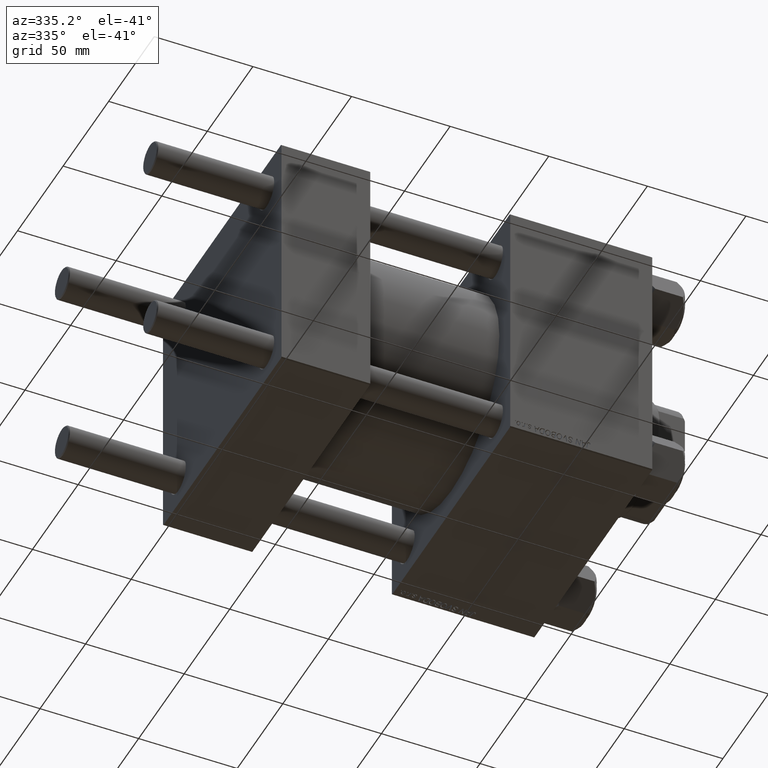
[diagram: clean part render]
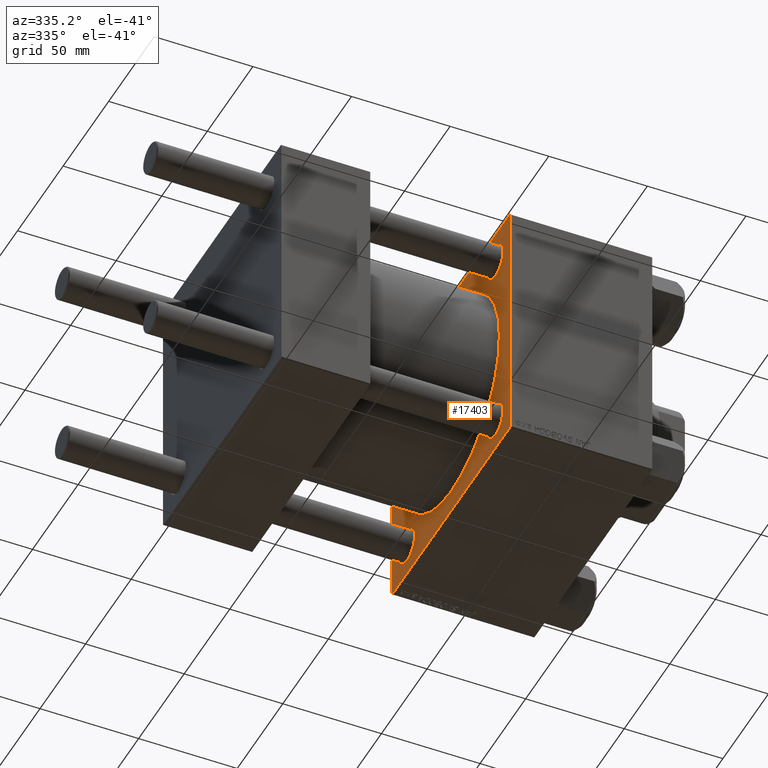
[diagram: same view with one face highlighted and labeled with its STEP entity id]
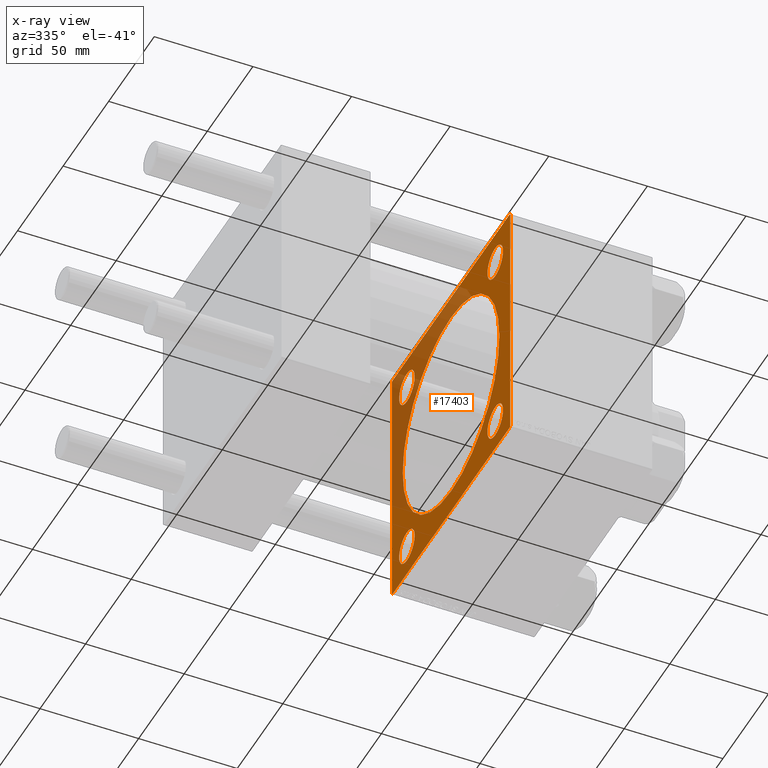
[diagram: x-ray of the same camera — body ghosted, the highlighted face saturated]
A machine part, auxiliary view. The second image highlights one B-rep face of the part: STEP entity #17403.
The next image is the same camera in x-ray: the body ghosted, the highlighted face saturated — about 31% of this face is hidden behind the body in this view.
In plain terms, the highlighted planar face has unit normal (-1, 0, 0).
Its self-contained STEP definition (entity closure, byte-faithful):
#423 = DIRECTION ( 'NONE',  ( 0.000000000000000000, 0.000000000000000000, 1.000000000000000000 ) ) ;
#435 = CARTESIAN_POINT ( 'NONE',  ( 115.9999999999999858, 64.50000000000002842, -64.99999999999998579 ) ) ;
#572 = DIRECTION ( 'NONE',  ( 0.000000000000000000, 0.000000000000000000, -1.000000000000000000 ) ) ;
#911 = DIRECTION ( 'NONE',  ( 1.000000000000000000, -0.000000000000000000, 0.000000000000000000 ) ) ;
#1003 = CARTESIAN_POINT ( 'NONE',  ( 115.9999999999999858, 64.75000000000181899, 64.74999999999822364 ) ) ;
#1353 = ORIENTED_EDGE ( 'NONE', *, *, #32723, .T. ) ;
#1377 = CARTESIAN_POINT ( 'NONE',  ( 115.9999999999999858, -48.44999999999999574, 56.94999999999998153 ) ) ;
#2782 = DIRECTION ( 'NONE',  ( 0.000000000000000000, 0.000000000000000000, -1.000000000000000000 ) ) ;
#2991 = CARTESIAN_POINT ( 'NONE',  ( 115.9999999999999858, 48.45000000000000995, -48.45000000000001705 ) ) ;
#3050 = CARTESIAN_POINT ( 'NONE',  ( 115.9999999999999858, -48.44999999999999574, -48.45000000000003126 ) ) ;
#3312 = CARTESIAN_POINT ( 'NONE',  ( 115.9999999999999858, -64.50000000000008527, 65.00000000000000000 ) ) ;
#3318 = CARTESIAN_POINT ( 'NONE',  ( 115.9999999999999858, -48.44999999999999574, 48.45000000000003126 ) ) ;
#3742 = FACE_BOUND ( 'NONE', #23202, .T. ) ;
#3964 = AXIS2_PLACEMENT_3D ( 'NONE', #43054, #15758, #12188 ) ;
#4161 = EDGE_CURVE ( 'NONE', #22669, #16779, #48635, .T. ) ;
#4215 = VECTOR ( 'NONE', #28365, 1000.000000000000000 ) ;
#4265 = CARTESIAN_POINT ( 'NONE',  ( 115.9999999999999858, 65.00000000000002842, -64.99999999999998579 ) ) ;
#5058 = VECTOR ( 'NONE', #41491, 1000.000000000000000 ) ;
#5149 = CARTESIAN_POINT ( 'NONE',  ( 115.9999999999999858, -64.50000000000002842, -65.00000000000001421 ) ) ;
#5670 = DIRECTION ( 'NONE',  ( -0.000000000000000000, -0.7071067811865671127, -0.7071067811865279218 ) ) ;
#5692 = CARTESIAN_POINT ( 'NONE',  ( 115.9999999999999858, -48.44999999999999574, 39.95000000000007390 ) ) ;
#5753 = CARTESIAN_POINT ( 'NONE',  ( 115.9999999999999858, -64.99999999999998579, 64.50000000000008527 ) ) ;
#5755 = VERTEX_POINT ( 'NONE', #5692 ) ;
#6107 = CARTESIAN_POINT ( 'NONE',  ( 115.9999999999999858, 0.000000000000000000, 0.000000000000000000 ) ) ;
#6985 = ORIENTED_EDGE ( 'NONE', *, *, #49990, .T. ) ;
#7256 = ORIENTED_EDGE ( 'NONE', *, *, #41363, .T. ) ;
#7318 = EDGE_LOOP ( 'NONE', ( #42192, #41130 ) ) ;
#7564 = FACE_BOUND ( 'NONE', #43947, .T. ) ;
#8051 = EDGE_CURVE ( 'NONE', #5755, #31914, #14155, .T. ) ;
#8074 = PLANE ( 'NONE',  #38797 ) ;
#8273 = ORIENTED_EDGE ( 'NONE', *, *, #38944, .T. ) ;
#8972 = CARTESIAN_POINT ( 'NONE',  ( 115.9999999999999858, -48.44999999999999574, -39.95000000000007390 ) ) ;
#9087 = DIRECTION ( 'NONE',  ( 1.000000000000000000, -0.000000000000000000, 0.000000000000000000 ) ) ;
#9145 = DIRECTION ( 'NONE',  ( 0.000000000000000000, 0.7071067811865279218, -0.7071067811865671127 ) ) ;
#9434 = CARTESIAN_POINT ( 'NONE',  ( 115.9999999999999858, -48.44999999999999574, 48.45000000000003126 ) ) ;
#9555 = CARTESIAN_POINT ( 'NONE',  ( 115.9999999999999858, -64.99999999999998579, -64.50000000000002842 ) ) ;
#10468 = AXIS2_PLACEMENT_3D ( 'NONE', #6107, #21656, #2782 ) ;
#10519 = ORIENTED_EDGE ( 'NONE', *, *, #16603, .T. ) ;
#10632 = DIRECTION ( 'NONE',  ( 0.000000000000000000, 0.000000000000000000, 1.000000000000000000 ) ) ;
#10823 = ORIENTED_EDGE ( 'NONE', *, *, #27561, .T. ) ;
#11128 = CARTESIAN_POINT ( 'NONE',  ( 115.9999999999999858, 0.000000000000000000, 0.000000000000000000 ) ) ;
#11917 = DIRECTION ( 'NONE',  ( 0.000000000000000000, -1.000000000000000000, -2.135044278125300850E-16 ) ) ;
#12023 = ORIENTED_EDGE ( 'NONE', *, *, #21187, .F. ) ;
#12072 = LINE ( 'NONE', #27627, #4215 ) ;
#12188 = DIRECTION ( 'NONE',  ( 0.000000000000000000, 0.000000000000000000, 1.000000000000000000 ) ) ;
#12751 = DIRECTION ( 'NONE',  ( 1.000000000000000000, -0.000000000000000000, 0.000000000000000000 ) ) ;
#13133 = VECTOR ( 'NONE', #5670, 1000.000000000000000 ) ;
#13581 = CARTESIAN_POINT ( 'NONE',  ( 115.9999999999999858, 48.45000000000000995, 39.95000000000005969 ) ) ;
#13660 = ORIENTED_EDGE ( 'NONE', *, *, #28082, .T. ) ;
#13704 = AXIS2_PLACEMENT_3D ( 'NONE', #2991, #45578, #10632 ) ;
#13765 = DIRECTION ( 'NONE',  ( 0.000000000000000000, 0.000000000000000000, 1.000000000000000000 ) ) ;
#14155 = CIRCLE ( 'NONE', #19017, 8.499999999999952038 ) ;
#14702 = LINE ( 'NONE', #40996, #17405 ) ;
#15181 = CARTESIAN_POINT ( 'NONE',  ( 115.9999999999999858, 65.00000000000002842, 65.00000000000001421 ) ) ;
#15351 = CIRCLE ( 'NONE', #3964, 8.499999999999952038 ) ;
#15758 = DIRECTION ( 'NONE',  ( 1.000000000000000000, -0.000000000000000000, 0.000000000000000000 ) ) ;
#16603 = EDGE_CURVE ( 'NONE', #17101, #28684, #26556, .T. ) ;
#16779 = VERTEX_POINT ( 'NONE', #9555 ) ;
#16950 = CARTESIAN_POINT ( 'NONE',  ( 115.9999999999999858, -48.44999999999999574, -56.94999999999998153 ) ) ;
#17101 = VERTEX_POINT ( 'NONE', #13581 ) ;
#17403 = ADVANCED_FACE ( 'NONE', ( #7564, #38169, #27456, #3742, #19291, #34868 ), #8074, .T. ) ;
#17405 = VECTOR ( 'NONE', #29512, 999.9999999999998863 ) ;
#18828 = CIRCLE ( 'NONE', #25317, 53.00000000000000711 ) ;
#18865 = DIRECTION ( 'NONE',  ( 0.000000000000000000, 0.000000000000000000, 1.000000000000000000 ) ) ;
#19001 = DIRECTION ( 'NONE',  ( 0.000000000000000000, 0.000000000000000000, 1.000000000000000000 ) ) ;
#19017 = AXIS2_PLACEMENT_3D ( 'NONE', #3318, #9087, #18865 ) ;
#19291 = FACE_BOUND ( 'NONE', #33982, .T. ) ;
#19369 = AXIS2_PLACEMENT_3D ( 'NONE', #3050, #38483, #38226 ) ;
#19803 = ORIENTED_EDGE ( 'NONE', *, *, #46148, .T. ) ;
#19929 = CIRCLE ( 'NONE', #41919, 8.499999999999952038 ) ;
#20229 = VERTEX_POINT ( 'NONE', #3312 ) ;
#20996 = VERTEX_POINT ( 'NONE', #21507 ) ;
#21187 = EDGE_CURVE ( 'NONE', #32810, #20229, #44606, .T. ) ;
#21294 = CARTESIAN_POINT ( 'NONE',  ( 115.9999999999999858, 48.45000000000000995, 56.94999999999996732 ) ) ;
#21507 = CARTESIAN_POINT ( 'NONE',  ( 115.9999999999999858, 6.490628035480973107E-15, -53.00000000000000711 ) ) ;
#21527 = ORIENTED_EDGE ( 'NONE', *, *, #37780, .T. ) ;
#21656 = DIRECTION ( 'NONE',  ( 1.000000000000000000, 0.000000000000000000, 0.000000000000000000 ) ) ;
#21971 = LINE ( 'NONE', #49017, #13133 ) ;
#22171 = EDGE_CURVE ( 'NONE', #49662, #27959, #23453, .T. ) ;
#22489 = EDGE_CURVE ( 'NONE', #27848, #32910, #47893, .T. ) ;
#22574 = VERTEX_POINT ( 'NONE', #435 ) ;
#22669 = VERTEX_POINT ( 'NONE', #5753 ) ;
#23202 = EDGE_LOOP ( 'NONE', ( #49781, #13660 ) ) ;
#23453 = CIRCLE ( 'NONE', #19369, 8.499999999999952038 ) ;
#24013 = CARTESIAN_POINT ( 'NONE',  ( 115.9999999999999858, 0.000000000000000000, 0.000000000000000000 ) ) ;
#24733 = DIRECTION ( 'NONE',  ( 1.000000000000000000, -0.000000000000000000, 0.000000000000000000 ) ) ;
#25058 = VECTOR ( 'NONE', #48936, 1000.000000000000000 ) ;
#25220 = CARTESIAN_POINT ( 'NONE',  ( 115.9999999999999858, 65.00000000000002842, 65.00000000000001421 ) ) ;
#25317 = AXIS2_PLACEMENT_3D ( 'NONE', #24013, #46730, #572 ) ;
#26206 = EDGE_LOOP ( 'NONE', ( #1353, #10519 ) ) ;
#26212 = CARTESIAN_POINT ( 'NONE',  ( 115.9999999999999858, 65.00000000000002842, 64.50000000000001421 ) ) ;
#26556 = CIRCLE ( 'NONE', #33881, 8.499999999999952038 ) ;
#26662 = DIRECTION ( 'NONE',  ( 1.000000000000000000, -0.000000000000000000, 0.000000000000000000 ) ) ;
#26899 = CIRCLE ( 'NONE', #33426, 8.499999999999952038 ) ;
#27456 = FACE_BOUND ( 'NONE', #7318, .T. ) ;
#27561 = EDGE_CURVE ( 'NONE', #20996, #48426, #38143, .T. ) ;
#27627 = CARTESIAN_POINT ( 'NONE',  ( 115.9999999999999858, -64.75000000000180478, -64.74999999999820943 ) ) ;
#27656 = EDGE_CURVE ( 'NONE', #32910, #27848, #15351, .T. ) ;
#27848 = VERTEX_POINT ( 'NONE', #31778 ) ;
#27959 = VERTEX_POINT ( 'NONE', #16950 ) ;
#28082 = EDGE_CURVE ( 'NONE', #27959, #49662, #28380, .T. ) ;
#28304 = DIRECTION ( 'NONE',  ( 0.000000000000000000, 0.000000000000000000, 1.000000000000000000 ) ) ;
#28365 = DIRECTION ( 'NONE',  ( 0.000000000000000000, -0.7071067811865279218, 0.7071067811865672237 ) ) ;
#28380 = CIRCLE ( 'NONE', #49590, 8.499999999999952038 ) ;
#28684 = VERTEX_POINT ( 'NONE', #21294 ) ;
#29512 = DIRECTION ( 'NONE',  ( -0.000000000000000000, 0.7071067811865376918, 0.7071067811865574537 ) ) ;
#29544 = VERTEX_POINT ( 'NONE', #26212 ) ;
#30243 = CARTESIAN_POINT ( 'NONE',  ( 115.9999999999999858, 48.45000000000000995, 48.45000000000001705 ) ) ;
#31039 = VECTOR ( 'NONE', #9145, 1000.000000000000000 ) ;
#31310 = LINE ( 'NONE', #4265, #35250 ) ;
#31719 = ORIENTED_EDGE ( 'NONE', *, *, #8051, .T. ) ;
#31778 = CARTESIAN_POINT ( 'NONE',  ( 115.9999999999999858, 48.45000000000000995, -56.94999999999996732 ) ) ;
#31914 = VERTEX_POINT ( 'NONE', #1377 ) ;
#32723 = EDGE_CURVE ( 'NONE', #28684, #17101, #26899, .T. ) ;
#32810 = VERTEX_POINT ( 'NONE', #47559 ) ;
#32910 = VERTEX_POINT ( 'NONE', #37075 ) ;
#33184 = VERTEX_POINT ( 'NONE', #5149 ) ;
#33426 = AXIS2_PLACEMENT_3D ( 'NONE', #30243, #26662, #19001 ) ;
#33507 = VERTEX_POINT ( 'NONE', #36897 ) ;
#33881 = AXIS2_PLACEMENT_3D ( 'NONE', #39181, #911, #423 ) ;
#33982 = EDGE_LOOP ( 'NONE', ( #41474, #10823 ) ) ;
#34207 = EDGE_CURVE ( 'NONE', #33507, #22574, #21971, .T. ) ;
#34611 = DIRECTION ( 'NONE',  ( -0.000000000000000000, 0.000000000000000000, 1.000000000000000000 ) ) ;
#34868 = FACE_OUTER_BOUND ( 'NONE', #42938, .T. ) ;
#35250 = VECTOR ( 'NONE', #11917, 1000.000000000000000 ) ;
#35944 = LINE ( 'NONE', #1003, #31039 ) ;
#36897 = CARTESIAN_POINT ( 'NONE',  ( 115.9999999999999858, 65.00000000000002842, -64.50000000000001421 ) ) ;
#37075 = CARTESIAN_POINT ( 'NONE',  ( 115.9999999999999858, 48.45000000000000995, -39.95000000000005969 ) ) ;
#37331 = EDGE_CURVE ( 'NONE', #48426, #20996, #18828, .T. ) ;
#37780 = EDGE_CURVE ( 'NONE', #32810, #29544, #35944, .T. ) ;
#38143 = CIRCLE ( 'NONE', #10468, 53.00000000000000711 ) ;
#38169 = FACE_BOUND ( 'NONE', #26206, .T. ) ;
#38226 = DIRECTION ( 'NONE',  ( 0.000000000000000000, 0.000000000000000000, 1.000000000000000000 ) ) ;
#38483 = DIRECTION ( 'NONE',  ( 1.000000000000000000, -0.000000000000000000, 0.000000000000000000 ) ) ;
#38797 = AXIS2_PLACEMENT_3D ( 'NONE', #11128, #42504, #34611 ) ;
#38944 = EDGE_CURVE ( 'NONE', #33184, #16779, #12072, .T. ) ;
#39181 = CARTESIAN_POINT ( 'NONE',  ( 115.9999999999999858, 48.45000000000000995, 48.45000000000001705 ) ) ;
#39488 = VECTOR ( 'NONE', #50379, 1000.000000000000000 ) ;
#39638 = ORIENTED_EDGE ( 'NONE', *, *, #4161, .F. ) ;
#39850 = ORIENTED_EDGE ( 'NONE', *, *, #44689, .T. ) ;
#40996 = CARTESIAN_POINT ( 'NONE',  ( 115.9999999999999858, -64.75000000000093792, 64.74999999999914735 ) ) ;
#41130 = ORIENTED_EDGE ( 'NONE', *, *, #22489, .T. ) ;
#41363 = EDGE_CURVE ( 'NONE', #22574, #33184, #31310, .T. ) ;
#41474 = ORIENTED_EDGE ( 'NONE', *, *, #37331, .T. ) ;
#41491 = DIRECTION ( 'NONE',  ( 0.000000000000000000, 0.000000000000000000, -1.000000000000000000 ) ) ;
#41919 = AXIS2_PLACEMENT_3D ( 'NONE', #9434, #24733, #13765 ) ;
#42192 = ORIENTED_EDGE ( 'NONE', *, *, #27656, .T. ) ;
#42504 = DIRECTION ( 'NONE',  ( -1.000000000000000000, 0.000000000000000000, -0.000000000000000000 ) ) ;
#42938 = EDGE_LOOP ( 'NONE', ( #7256, #8273, #39638, #39850, #12023, #21527, #19803, #48272 ) ) ;
#43054 = CARTESIAN_POINT ( 'NONE',  ( 115.9999999999999858, 48.45000000000000995, -48.45000000000001705 ) ) ;
#43947 = EDGE_LOOP ( 'NONE', ( #6985, #31719 ) ) ;
#44556 = CARTESIAN_POINT ( 'NONE',  ( 115.9999999999999858, -64.99999999999998579, 65.00000000000000000 ) ) ;
#44606 = LINE ( 'NONE', #25220, #25058 ) ;
#44689 = EDGE_CURVE ( 'NONE', #22669, #20229, #14702, .T. ) ;
#45578 = DIRECTION ( 'NONE',  ( 1.000000000000000000, -0.000000000000000000, 0.000000000000000000 ) ) ;
#46148 = EDGE_CURVE ( 'NONE', #29544, #33507, #50134, .T. ) ;
#46730 = DIRECTION ( 'NONE',  ( 1.000000000000000000, 0.000000000000000000, 0.000000000000000000 ) ) ;
#47023 = CARTESIAN_POINT ( 'NONE',  ( 115.9999999999999858, 0.000000000000000000, 53.00000000000000711 ) ) ;
#47559 = CARTESIAN_POINT ( 'NONE',  ( 115.9999999999999858, 64.50000000000005684, 65.00000000000001421 ) ) ;
#47703 = CARTESIAN_POINT ( 'NONE',  ( 115.9999999999999858, -48.44999999999999574, -48.45000000000003126 ) ) ;
#47893 = CIRCLE ( 'NONE', #13704, 8.499999999999952038 ) ;
#48272 = ORIENTED_EDGE ( 'NONE', *, *, #34207, .T. ) ;
#48426 = VERTEX_POINT ( 'NONE', #47023 ) ;
#48635 = LINE ( 'NONE', #44556, #5058 ) ;
#48936 = DIRECTION ( 'NONE',  ( 0.000000000000000000, -1.000000000000000000, -1.067522139062650425E-16 ) ) ;
#49017 = CARTESIAN_POINT ( 'NONE',  ( 115.9999999999999858, 64.74999999999822364, -64.75000000000180478 ) ) ;
#49590 = AXIS2_PLACEMENT_3D ( 'NONE', #47703, #12751, #28304 ) ;
#49662 = VERTEX_POINT ( 'NONE', #8972 ) ;
#49781 = ORIENTED_EDGE ( 'NONE', *, *, #22171, .T. ) ;
#49990 = EDGE_CURVE ( 'NONE', #31914, #5755, #19929, .T. ) ;
#50134 = LINE ( 'NONE', #15181, #39488 ) ;
#50379 = DIRECTION ( 'NONE',  ( 0.000000000000000000, 0.000000000000000000, -1.000000000000000000 ) ) ;